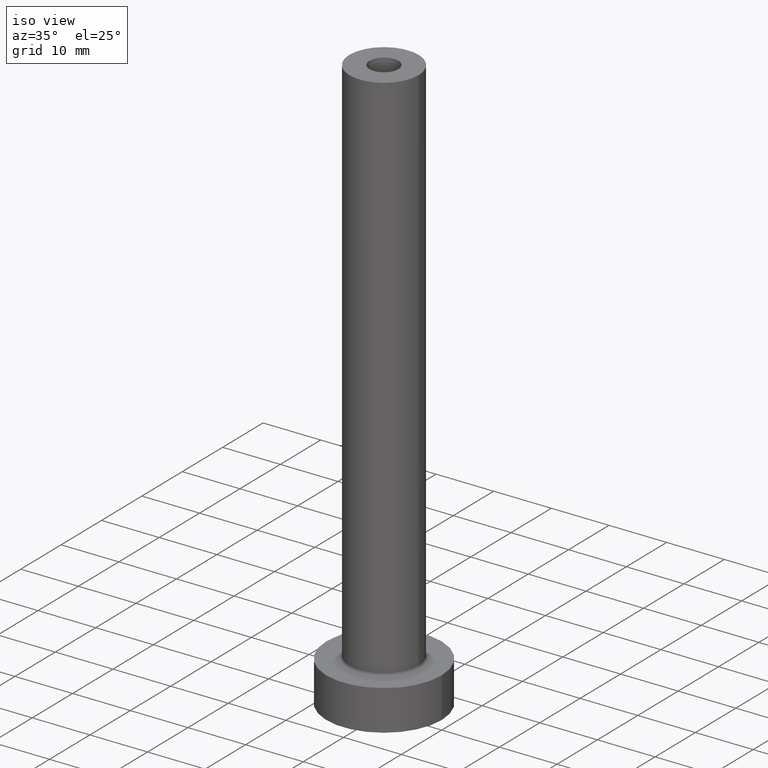
[diagram: clean part render]
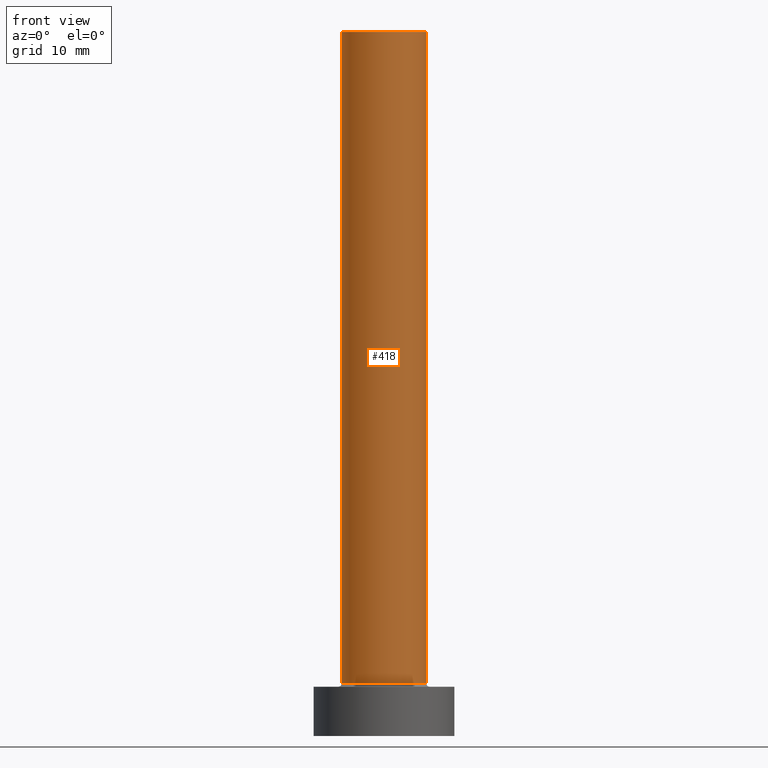
[diagram: tour spotlight — one face highlighted and labeled with its STEP entity id]
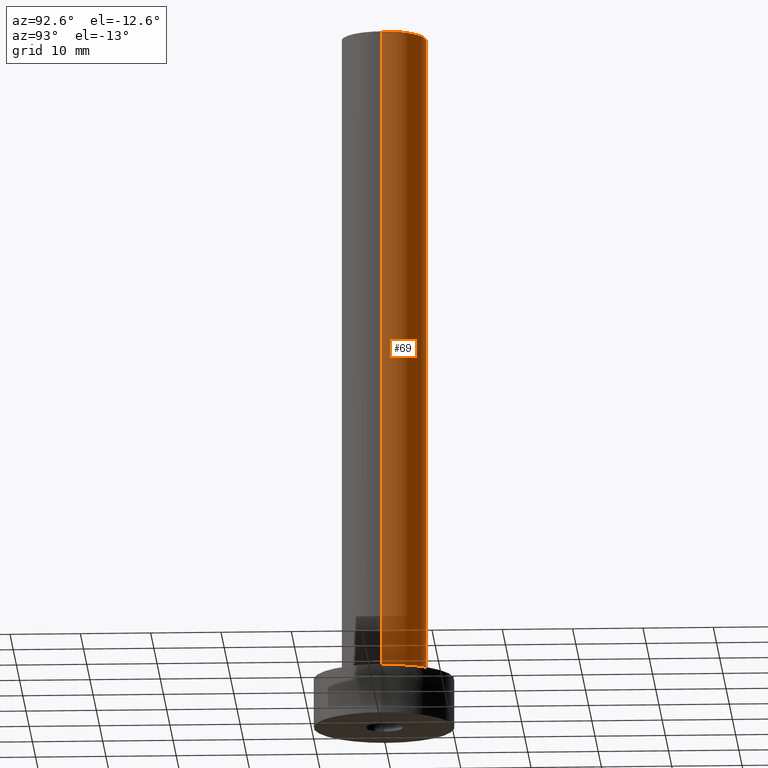
[diagram: tour spotlight — one face highlighted and labeled with its STEP entity id]
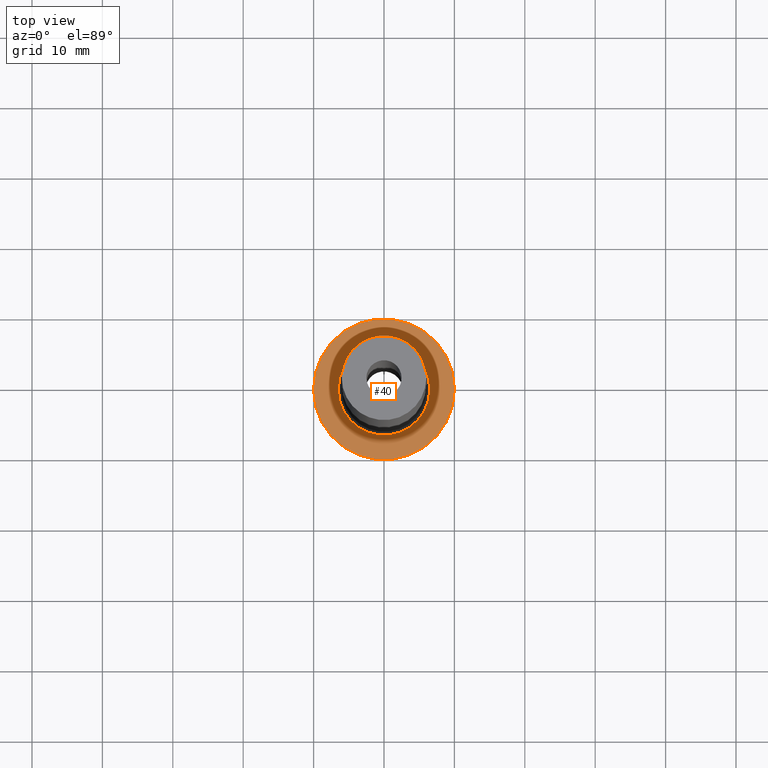
[diagram: tour spotlight — one face highlighted and labeled with its STEP entity id]
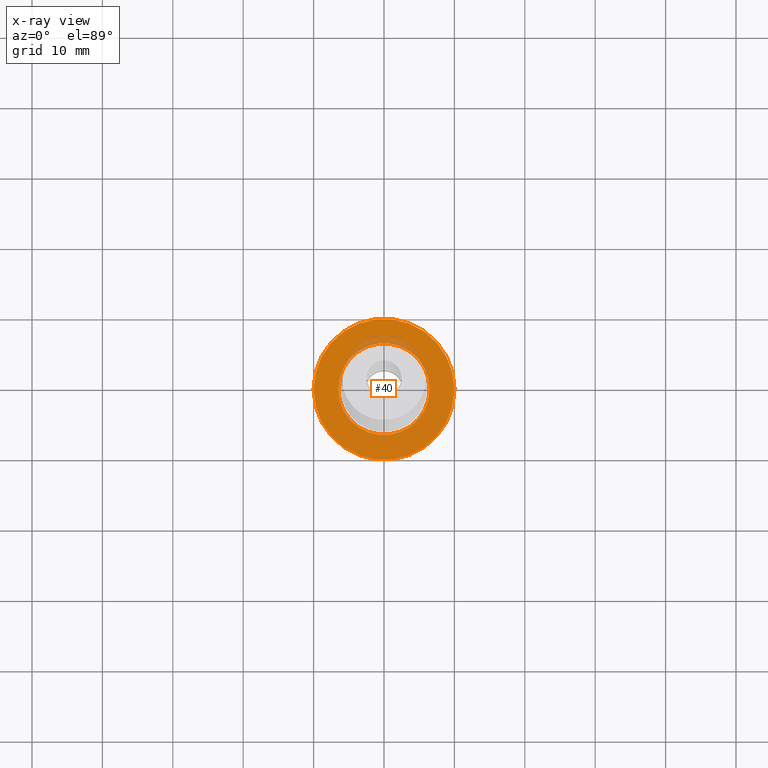
[diagram: x-ray of the same camera — body ghosted, this tour face saturated]
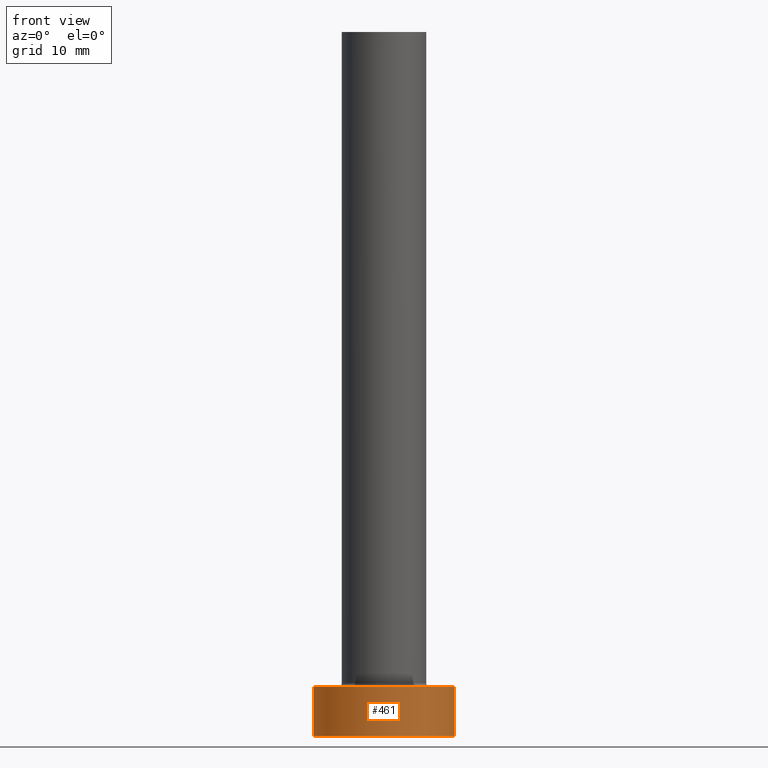
[diagram: tour spotlight — one face highlighted and labeled with its STEP entity id]
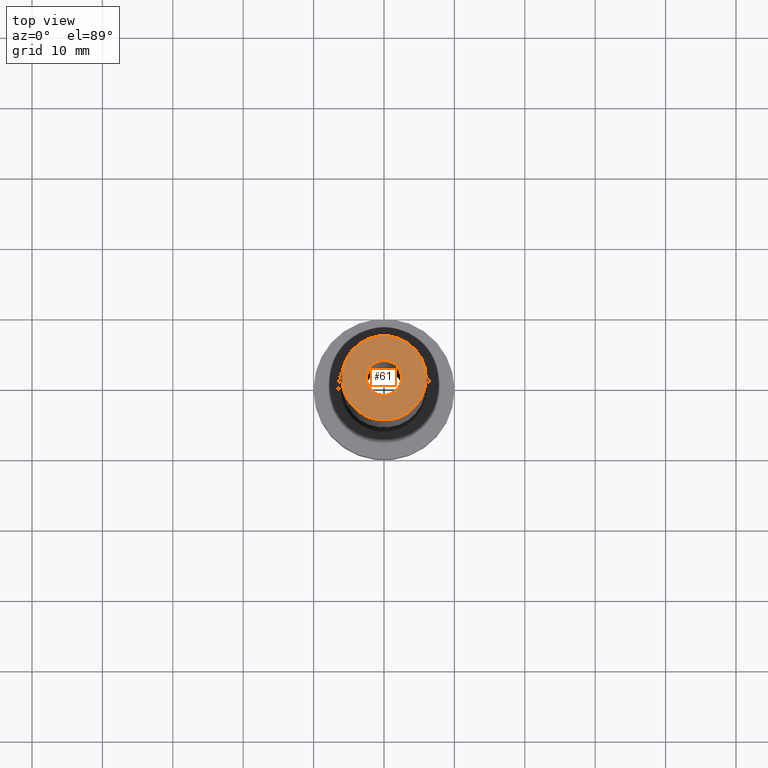
[diagram: tour spotlight — one face highlighted and labeled with its STEP entity id]
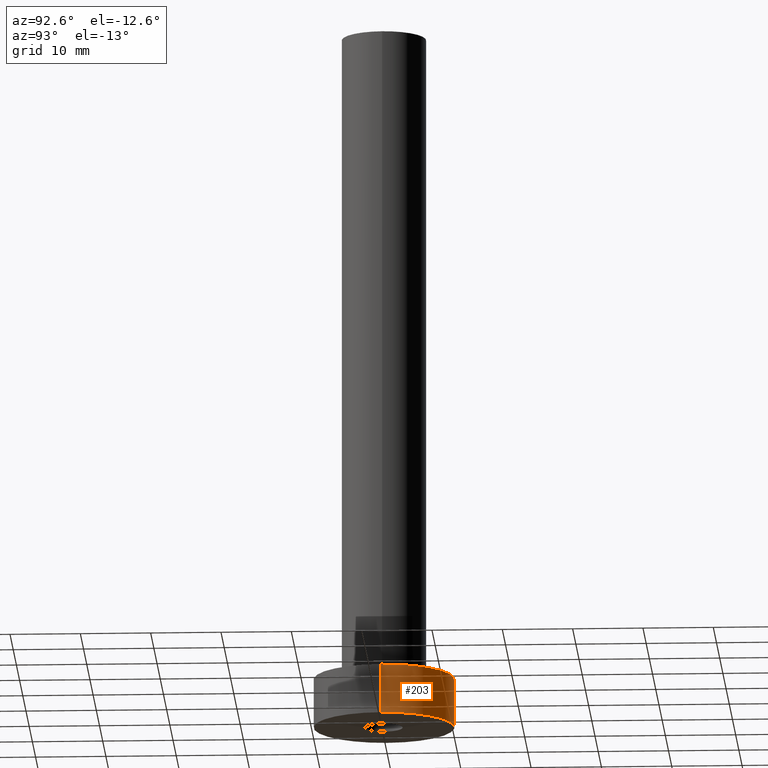
[diagram: tour spotlight — one face highlighted and labeled with its STEP entity id]
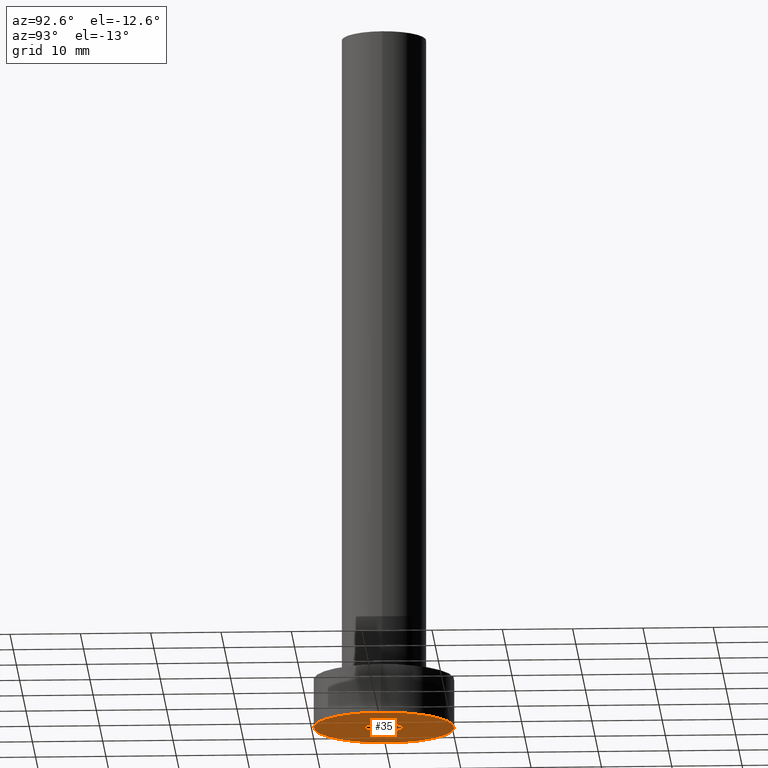
[diagram: tour spotlight — one face highlighted and labeled with its STEP entity id]
A machine part: a face-by-face anatomy tour. The part has 14 B-rep faces; the first image is the clean iso view, then the 7 largest visible faces are spotlighted one at a time (largest first), each with its STEP entity span.

Face 1 — front view, entity #418. In plain terms, the highlighted cylindrical surface (partial cylindrical patch) has radius 6 mm, axis along (-0, -0, -1).
Definition (entity closure, byte-faithful):
#4 = CARTESIAN_POINT ( 'NONE',  ( 0.000000000000000000, 0.000000000000000000, 100.0000000000000000 ) ) ;
#15 = ORIENTED_EDGE ( 'NONE', *, *, #187, .F. ) ;
#16 = EDGE_LOOP ( 'NONE', ( #15, #282, #206, #173 ) ) ;
#33 = AXIS2_PLACEMENT_3D ( 'NONE', #46, #428, #258 ) ;
#46 = CARTESIAN_POINT ( 'NONE',  ( 0.000000000000000000, 0.000000000000000000, 100.0000000000000000 ) ) ;
#53 = EDGE_CURVE ( 'NONE', #121, #387, #427, .T. ) ;
#68 = VERTEX_POINT ( 'NONE', #166 ) ;
#100 = DIRECTION ( 'NONE',  ( 1.000000000000000000, 0.000000000000000000, 0.000000000000000000 ) ) ;
#119 = CARTESIAN_POINT ( 'NONE',  ( -6.000000000000000888, 0.000000000000000000, 7.500000000000007105 ) ) ;
#121 = VERTEX_POINT ( 'NONE', #362 ) ;
#131 = DIRECTION ( 'NONE',  ( 0.000000000000000000, 0.000000000000000000, 1.000000000000000000 ) ) ;
#147 = CIRCLE ( 'NONE', #449, 6.000000000000000888 ) ;
#161 = AXIS2_PLACEMENT_3D ( 'NONE', #4, #131, #312 ) ;
#166 = CARTESIAN_POINT ( 'NONE',  ( 6.000000000000000888, 7.347880794884119736E-16, 7.500000000000007105 ) ) ;
#173 = ORIENTED_EDGE ( 'NONE', *, *, #328, .T. ) ;
#175 = FACE_OUTER_BOUND ( 'NONE', #16, .T. ) ;
#178 = CARTESIAN_POINT ( 'NONE',  ( 6.000000000000000888, 7.347880794884119736E-16, 100.0000000000000000 ) ) ;
#185 = CARTESIAN_POINT ( 'NONE',  ( -6.000000000000000888, 0.000000000000000000, 100.0000000000000000 ) ) ;
#187 = EDGE_CURVE ( 'NONE', #399, #68, #425, .T. ) ;
#206 = ORIENTED_EDGE ( 'NONE', *, *, #53, .T. ) ;
#224 = DIRECTION ( 'NONE',  ( -0.000000000000000000, -0.000000000000000000, -1.000000000000000000 ) ) ;
#245 = DIRECTION ( 'NONE',  ( -0.000000000000000000, -0.000000000000000000, -1.000000000000000000 ) ) ;
#247 = VECTOR ( 'NONE', #245, 1000.000000000000000 ) ;
#258 = DIRECTION ( 'NONE',  ( -1.000000000000000000, 0.000000000000000000, 0.000000000000000000 ) ) ;
#262 = CARTESIAN_POINT ( 'NONE',  ( 6.000000000000000888, 7.347880794884119736E-16, 100.0000000000000000 ) ) ;
#282 = ORIENTED_EDGE ( 'NONE', *, *, #345, .F. ) ;
#312 = DIRECTION ( 'NONE',  ( 1.000000000000000000, 0.000000000000000000, 0.000000000000000000 ) ) ;
#314 = VECTOR ( 'NONE', #224, 1000.000000000000000 ) ;
#328 = EDGE_CURVE ( 'NONE', #387, #68, #147, .T. ) ;
#340 = CIRCLE ( 'NONE', #161, 6.000000000000000888 ) ;
#345 = EDGE_CURVE ( 'NONE', #121, #399, #340, .T. ) ;
#362 = CARTESIAN_POINT ( 'NONE',  ( -6.000000000000000888, 0.000000000000000000, 100.0000000000000000 ) ) ;
#386 = DIRECTION ( 'NONE',  ( 0.000000000000000000, 0.000000000000000000, 1.000000000000000000 ) ) ;
#387 = VERTEX_POINT ( 'NONE', #119 ) ;
#388 = CARTESIAN_POINT ( 'NONE',  ( 0.000000000000000000, 0.000000000000000000, 7.500000000000007105 ) ) ;
#399 = VERTEX_POINT ( 'NONE', #178 ) ;
#418 = ADVANCED_FACE ( 'NONE', ( #175 ), #441, .T. ) ;
#425 = LINE ( 'NONE', #262, #314 ) ;
#427 = LINE ( 'NONE', #185, #247 ) ;
#428 = DIRECTION ( 'NONE',  ( -0.000000000000000000, -0.000000000000000000, -1.000000000000000000 ) ) ;
#441 = CYLINDRICAL_SURFACE ( 'NONE', #33, 6.000000000000000888 ) ;
#449 = AXIS2_PLACEMENT_3D ( 'NONE', #388, #386, #100 ) ;

Face 2 — auxiliary view, entity #69. In plain terms, the highlighted cylindrical surface (partial cylindrical patch) has radius 6 mm, axis along (-0, -0, -1).
Definition (entity closure, byte-faithful):
#6 = CARTESIAN_POINT ( 'NONE',  ( 0.000000000000000000, 0.000000000000000000, 100.0000000000000000 ) ) ;
#12 = DIRECTION ( 'NONE',  ( 0.000000000000000000, 0.000000000000000000, 1.000000000000000000 ) ) ;
#47 = AXIS2_PLACEMENT_3D ( 'NONE', #364, #371, #81 ) ;
#53 = EDGE_CURVE ( 'NONE', #121, #387, #427, .T. ) ;
#68 = VERTEX_POINT ( 'NONE', #166 ) ;
#69 = ADVANCED_FACE ( 'NONE', ( #390 ), #319, .T. ) ;
#74 = DIRECTION ( 'NONE',  ( -0.000000000000000000, -0.000000000000000000, -1.000000000000000000 ) ) ;
#81 = DIRECTION ( 'NONE',  ( 1.000000000000000000, 0.000000000000000000, 0.000000000000000000 ) ) ;
#90 = EDGE_CURVE ( 'NONE', #399, #121, #358, .T. ) ;
#110 = AXIS2_PLACEMENT_3D ( 'NONE', #398, #12, #181 ) ;
#113 = ORIENTED_EDGE ( 'NONE', *, *, #187, .T. ) ;
#119 = CARTESIAN_POINT ( 'NONE',  ( -6.000000000000000888, 0.000000000000000000, 7.500000000000007105 ) ) ;
#121 = VERTEX_POINT ( 'NONE', #362 ) ;
#166 = CARTESIAN_POINT ( 'NONE',  ( 6.000000000000000888, 7.347880794884119736E-16, 7.500000000000007105 ) ) ;
#178 = CARTESIAN_POINT ( 'NONE',  ( 6.000000000000000888, 7.347880794884119736E-16, 100.0000000000000000 ) ) ;
#181 = DIRECTION ( 'NONE',  ( 1.000000000000000000, 0.000000000000000000, 0.000000000000000000 ) ) ;
#185 = CARTESIAN_POINT ( 'NONE',  ( -6.000000000000000888, 0.000000000000000000, 100.0000000000000000 ) ) ;
#187 = EDGE_CURVE ( 'NONE', #399, #68, #425, .T. ) ;
#207 = DIRECTION ( 'NONE',  ( -1.000000000000000000, 0.000000000000000000, 0.000000000000000000 ) ) ;
#224 = DIRECTION ( 'NONE',  ( -0.000000000000000000, -0.000000000000000000, -1.000000000000000000 ) ) ;
#235 = CIRCLE ( 'NONE', #47, 6.000000000000000888 ) ;
#245 = DIRECTION ( 'NONE',  ( -0.000000000000000000, -0.000000000000000000, -1.000000000000000000 ) ) ;
#247 = VECTOR ( 'NONE', #245, 1000.000000000000000 ) ;
#257 = ORIENTED_EDGE ( 'NONE', *, *, #53, .F. ) ;
#262 = CARTESIAN_POINT ( 'NONE',  ( 6.000000000000000888, 7.347880794884119736E-16, 100.0000000000000000 ) ) ;
#291 = EDGE_LOOP ( 'NONE', ( #323, #113, #349, #257 ) ) ;
#304 = AXIS2_PLACEMENT_3D ( 'NONE', #6, #74, #207 ) ;
#314 = VECTOR ( 'NONE', #224, 1000.000000000000000 ) ;
#319 = CYLINDRICAL_SURFACE ( 'NONE', #304, 6.000000000000000888 ) ;
#323 = ORIENTED_EDGE ( 'NONE', *, *, #90, .F. ) ;
#349 = ORIENTED_EDGE ( 'NONE', *, *, #395, .T. ) ;
#358 = CIRCLE ( 'NONE', #110, 6.000000000000000888 ) ;
#362 = CARTESIAN_POINT ( 'NONE',  ( -6.000000000000000888, 0.000000000000000000, 100.0000000000000000 ) ) ;
#364 = CARTESIAN_POINT ( 'NONE',  ( 0.000000000000000000, 0.000000000000000000, 7.500000000000007105 ) ) ;
#371 = DIRECTION ( 'NONE',  ( 0.000000000000000000, 0.000000000000000000, 1.000000000000000000 ) ) ;
#387 = VERTEX_POINT ( 'NONE', #119 ) ;
#390 = FACE_OUTER_BOUND ( 'NONE', #291, .T. ) ;
#395 = EDGE_CURVE ( 'NONE', #68, #387, #235, .T. ) ;
#398 = CARTESIAN_POINT ( 'NONE',  ( 0.000000000000000000, 0.000000000000000000, 100.0000000000000000 ) ) ;
#399 = VERTEX_POINT ( 'NONE', #178 ) ;
#425 = LINE ( 'NONE', #262, #314 ) ;
#427 = LINE ( 'NONE', #185, #247 ) ;

Face 3 — top view, entity #40. An x-ray twin of the same camera follows (body ghosted, this face saturated) — the face is partly hidden behind the body. In plain terms, the highlighted planar face has unit normal (0, 0, 1).
Definition (entity closure, byte-faithful):
#20 = EDGE_LOOP ( 'NONE', ( #212, #117 ) ) ;
#30 = CARTESIAN_POINT ( 'NONE',  ( 0.000000000000000000, 0.000000000000000000, 7.000000000000000000 ) ) ;
#39 = ORIENTED_EDGE ( 'NONE', *, *, #139, .T. ) ;
#40 = ADVANCED_FACE ( 'NONE', ( #292, #290 ), #242, .T. ) ;
#51 = CARTESIAN_POINT ( 'NONE',  ( 10.00000000000000000, 1.224646799147353256E-15, 7.000000000000000000 ) ) ;
#80 = DIRECTION ( 'NONE',  ( 1.000000000000000000, 0.000000000000000000, -0.000000000000000000 ) ) ;
#86 = AXIS2_PLACEMENT_3D ( 'NONE', #30, #94, #234 ) ;
#94 = DIRECTION ( 'NONE',  ( -0.000000000000000000, -0.000000000000000000, -1.000000000000000000 ) ) ;
#99 = CIRCLE ( 'NONE', #200, 6.500000000000000888 ) ;
#112 = CARTESIAN_POINT ( 'NONE',  ( -6.500000000000000888, 7.960204194457796463E-16, 7.000000000000002665 ) ) ;
#117 = ORIENTED_EDGE ( 'NONE', *, *, #196, .T. ) ;
#120 = AXIS2_PLACEMENT_3D ( 'NONE', #265, #375, #144 ) ;
#126 = CIRCLE ( 'NONE', #120, 10.00000000000000000 ) ;
#132 = ORIENTED_EDGE ( 'NONE', *, *, #298, .T. ) ;
#137 = CARTESIAN_POINT ( 'NONE',  ( -10.00000000000000000, 0.000000000000000000, 7.000000000000000000 ) ) ;
#139 = EDGE_CURVE ( 'NONE', #442, #359, #201, .T. ) ;
#144 = DIRECTION ( 'NONE',  ( 1.000000000000000000, 0.000000000000000000, 0.000000000000000000 ) ) ;
#163 = AXIS2_PLACEMENT_3D ( 'NONE', #437, #321, #80 ) ;
#196 = EDGE_CURVE ( 'NONE', #433, #391, #126, .T. ) ;
#200 = AXIS2_PLACEMENT_3D ( 'NONE', #346, #237, #311 ) ;
#201 = CIRCLE ( 'NONE', #86, 6.500000000000000888 ) ;
#212 = ORIENTED_EDGE ( 'NONE', *, *, #382, .T. ) ;
#234 = DIRECTION ( 'NONE',  ( 1.000000000000000000, 0.000000000000000000, 0.000000000000000000 ) ) ;
#237 = DIRECTION ( 'NONE',  ( -0.000000000000000000, -0.000000000000000000, -1.000000000000000000 ) ) ;
#242 = PLANE ( 'NONE',  #163 ) ;
#265 = CARTESIAN_POINT ( 'NONE',  ( 0.000000000000000000, 0.000000000000000000, 7.000000000000000000 ) ) ;
#273 = CARTESIAN_POINT ( 'NONE',  ( 0.000000000000000000, 0.000000000000000000, 7.000000000000000000 ) ) ;
#281 = CARTESIAN_POINT ( 'NONE',  ( 6.500000000000000888, 0.000000000000000000, 7.000000000000002665 ) ) ;
#290 = FACE_OUTER_BOUND ( 'NONE', #20, .T. ) ;
#292 = FACE_BOUND ( 'NONE', #334, .T. ) ;
#298 = EDGE_CURVE ( 'NONE', #359, #442, #99, .T. ) ;
#311 = DIRECTION ( 'NONE',  ( 1.000000000000000000, 0.000000000000000000, 0.000000000000000000 ) ) ;
#321 = DIRECTION ( 'NONE',  ( 0.000000000000000000, 0.000000000000000000, 1.000000000000000000 ) ) ;
#326 = CIRCLE ( 'NONE', #422, 10.00000000000000000 ) ;
#334 = EDGE_LOOP ( 'NONE', ( #132, #39 ) ) ;
#346 = CARTESIAN_POINT ( 'NONE',  ( 0.000000000000000000, 0.000000000000000000, 7.000000000000000000 ) ) ;
#359 = VERTEX_POINT ( 'NONE', #281 ) ;
#375 = DIRECTION ( 'NONE',  ( 0.000000000000000000, 0.000000000000000000, 1.000000000000000000 ) ) ;
#382 = EDGE_CURVE ( 'NONE', #391, #433, #326, .T. ) ;
#391 = VERTEX_POINT ( 'NONE', #137 ) ;
#401 = DIRECTION ( 'NONE',  ( 1.000000000000000000, 0.000000000000000000, 0.000000000000000000 ) ) ;
#421 = DIRECTION ( 'NONE',  ( 0.000000000000000000, 0.000000000000000000, 1.000000000000000000 ) ) ;
#422 = AXIS2_PLACEMENT_3D ( 'NONE', #273, #421, #401 ) ;
#433 = VERTEX_POINT ( 'NONE', #51 ) ;
#437 = CARTESIAN_POINT ( 'NONE',  ( 0.000000000000000000, 0.000000000000000000, 7.000000000000000000 ) ) ;
#442 = VERTEX_POINT ( 'NONE', #112 ) ;

Face 4 — front view, entity #461. In plain terms, the highlighted cylindrical surface (partial cylindrical patch) has radius 10 mm, axis along (-0, -0, -1).
Definition (entity closure, byte-faithful):
#8 = CARTESIAN_POINT ( 'NONE',  ( 0.000000000000000000, 0.000000000000000000, 0.000000000000000000 ) ) ;
#14 = DIRECTION ( 'NONE',  ( -0.000000000000000000, -0.000000000000000000, -1.000000000000000000 ) ) ;
#48 = CARTESIAN_POINT ( 'NONE',  ( 10.00000000000000000, 1.224646799147353256E-15, 0.000000000000000000 ) ) ;
#51 = CARTESIAN_POINT ( 'NONE',  ( 10.00000000000000000, 1.224646799147353256E-15, 7.000000000000000000 ) ) ;
#78 = ORIENTED_EDGE ( 'NONE', *, *, #382, .F. ) ;
#88 = CYLINDRICAL_SURFACE ( 'NONE', #403, 10.00000000000000000 ) ;
#103 = ORIENTED_EDGE ( 'NONE', *, *, #455, .F. ) ;
#127 = EDGE_CURVE ( 'NONE', #391, #255, #327, .T. ) ;
#137 = CARTESIAN_POINT ( 'NONE',  ( -10.00000000000000000, 0.000000000000000000, 7.000000000000000000 ) ) ;
#156 = AXIS2_PLACEMENT_3D ( 'NONE', #8, #239, #241 ) ;
#194 = CIRCLE ( 'NONE', #156, 10.00000000000000000 ) ;
#209 = VERTEX_POINT ( 'NONE', #48 ) ;
#216 = LINE ( 'NONE', #331, #277 ) ;
#220 = CARTESIAN_POINT ( 'NONE',  ( 0.000000000000000000, 0.000000000000000000, 7.000000000000000000 ) ) ;
#239 = DIRECTION ( 'NONE',  ( 0.000000000000000000, 0.000000000000000000, 1.000000000000000000 ) ) ;
#241 = DIRECTION ( 'NONE',  ( 1.000000000000000000, 0.000000000000000000, 0.000000000000000000 ) ) ;
#243 = DIRECTION ( 'NONE',  ( -1.000000000000000000, 0.000000000000000000, 0.000000000000000000 ) ) ;
#248 = CARTESIAN_POINT ( 'NONE',  ( -10.00000000000000000, 0.000000000000000000, 7.000000000000000000 ) ) ;
#249 = ORIENTED_EDGE ( 'NONE', *, *, #127, .T. ) ;
#255 = VERTEX_POINT ( 'NONE', #413 ) ;
#273 = CARTESIAN_POINT ( 'NONE',  ( 0.000000000000000000, 0.000000000000000000, 7.000000000000000000 ) ) ;
#277 = VECTOR ( 'NONE', #293, 1000.000000000000000 ) ;
#280 = VECTOR ( 'NONE', #14, 1000.000000000000000 ) ;
#287 = DIRECTION ( 'NONE',  ( -0.000000000000000000, -0.000000000000000000, -1.000000000000000000 ) ) ;
#293 = DIRECTION ( 'NONE',  ( -0.000000000000000000, -0.000000000000000000, -1.000000000000000000 ) ) ;
#309 = EDGE_CURVE ( 'NONE', #255, #209, #194, .T. ) ;
#310 = ORIENTED_EDGE ( 'NONE', *, *, #309, .T. ) ;
#320 = EDGE_LOOP ( 'NONE', ( #103, #78, #249, #310 ) ) ;
#326 = CIRCLE ( 'NONE', #422, 10.00000000000000000 ) ;
#327 = LINE ( 'NONE', #248, #280 ) ;
#331 = CARTESIAN_POINT ( 'NONE',  ( 10.00000000000000000, 1.224646799147353256E-15, 7.000000000000000000 ) ) ;
#382 = EDGE_CURVE ( 'NONE', #391, #433, #326, .T. ) ;
#391 = VERTEX_POINT ( 'NONE', #137 ) ;
#401 = DIRECTION ( 'NONE',  ( 1.000000000000000000, 0.000000000000000000, 0.000000000000000000 ) ) ;
#403 = AXIS2_PLACEMENT_3D ( 'NONE', #220, #287, #243 ) ;
#405 = FACE_OUTER_BOUND ( 'NONE', #320, .T. ) ;
#413 = CARTESIAN_POINT ( 'NONE',  ( -10.00000000000000000, 0.000000000000000000, 0.000000000000000000 ) ) ;
#421 = DIRECTION ( 'NONE',  ( 0.000000000000000000, 0.000000000000000000, 1.000000000000000000 ) ) ;
#422 = AXIS2_PLACEMENT_3D ( 'NONE', #273, #421, #401 ) ;
#433 = VERTEX_POINT ( 'NONE', #51 ) ;
#455 = EDGE_CURVE ( 'NONE', #433, #209, #216, .T. ) ;
#461 = ADVANCED_FACE ( 'NONE', ( #405 ), #88, .T. ) ;

Face 5 — top view, entity #61. In plain terms, the highlighted planar face has unit normal (0, 0, 1).
Definition (entity closure, byte-faithful):
#4 = CARTESIAN_POINT ( 'NONE',  ( 0.000000000000000000, 0.000000000000000000, 100.0000000000000000 ) ) ;
#10 = CARTESIAN_POINT ( 'NONE',  ( 2.500000000000000000, 3.061616997868382648E-16, 100.0000000000000000 ) ) ;
#12 = DIRECTION ( 'NONE',  ( 0.000000000000000000, 0.000000000000000000, 1.000000000000000000 ) ) ;
#38 = FACE_BOUND ( 'NONE', #316, .T. ) ;
#61 = ADVANCED_FACE ( 'NONE', ( #38, #172 ), #435, .T. ) ;
#67 = CIRCLE ( 'NONE', #329, 2.500000000000000000 ) ;
#70 = ORIENTED_EDGE ( 'NONE', *, *, #345, .T. ) ;
#77 = DIRECTION ( 'NONE',  ( 1.000000000000000000, 0.000000000000000000, -0.000000000000000000 ) ) ;
#79 = ORIENTED_EDGE ( 'NONE', *, *, #160, .F. ) ;
#90 = EDGE_CURVE ( 'NONE', #399, #121, #358, .T. ) ;
#105 = ORIENTED_EDGE ( 'NONE', *, *, #90, .T. ) ;
#108 = DIRECTION ( 'NONE',  ( 1.000000000000000000, 0.000000000000000000, 0.000000000000000000 ) ) ;
#110 = AXIS2_PLACEMENT_3D ( 'NONE', #398, #12, #181 ) ;
#118 = ORIENTED_EDGE ( 'NONE', *, *, #157, .F. ) ;
#121 = VERTEX_POINT ( 'NONE', #362 ) ;
#131 = DIRECTION ( 'NONE',  ( 0.000000000000000000, 0.000000000000000000, 1.000000000000000000 ) ) ;
#157 = EDGE_CURVE ( 'NONE', #426, #174, #67, .T. ) ;
#160 = EDGE_CURVE ( 'NONE', #174, #426, #379, .T. ) ;
#161 = AXIS2_PLACEMENT_3D ( 'NONE', #4, #131, #312 ) ;
#165 = DIRECTION ( 'NONE',  ( 1.000000000000000000, 0.000000000000000000, 0.000000000000000000 ) ) ;
#172 = FACE_OUTER_BOUND ( 'NONE', #333, .T. ) ;
#174 = VERTEX_POINT ( 'NONE', #393 ) ;
#178 = CARTESIAN_POINT ( 'NONE',  ( 6.000000000000000888, 7.347880794884119736E-16, 100.0000000000000000 ) ) ;
#181 = DIRECTION ( 'NONE',  ( 1.000000000000000000, 0.000000000000000000, 0.000000000000000000 ) ) ;
#183 = AXIS2_PLACEMENT_3D ( 'NONE', #350, #246, #165 ) ;
#197 = CARTESIAN_POINT ( 'NONE',  ( 0.000000000000000000, 0.000000000000000000, 100.0000000000000000 ) ) ;
#204 = CARTESIAN_POINT ( 'NONE',  ( 0.000000000000000000, 0.000000000000000000, 100.0000000000000000 ) ) ;
#246 = DIRECTION ( 'NONE',  ( 0.000000000000000000, 0.000000000000000000, 1.000000000000000000 ) ) ;
#297 = AXIS2_PLACEMENT_3D ( 'NONE', #204, #351, #77 ) ;
#312 = DIRECTION ( 'NONE',  ( 1.000000000000000000, 0.000000000000000000, 0.000000000000000000 ) ) ;
#316 = EDGE_LOOP ( 'NONE', ( #79, #118 ) ) ;
#329 = AXIS2_PLACEMENT_3D ( 'NONE', #197, #343, #108 ) ;
#333 = EDGE_LOOP ( 'NONE', ( #70, #105 ) ) ;
#340 = CIRCLE ( 'NONE', #161, 6.000000000000000888 ) ;
#343 = DIRECTION ( 'NONE',  ( 0.000000000000000000, 0.000000000000000000, 1.000000000000000000 ) ) ;
#345 = EDGE_CURVE ( 'NONE', #121, #399, #340, .T. ) ;
#350 = CARTESIAN_POINT ( 'NONE',  ( 0.000000000000000000, 0.000000000000000000, 100.0000000000000000 ) ) ;
#351 = DIRECTION ( 'NONE',  ( 0.000000000000000000, 0.000000000000000000, 1.000000000000000000 ) ) ;
#358 = CIRCLE ( 'NONE', #110, 6.000000000000000888 ) ;
#362 = CARTESIAN_POINT ( 'NONE',  ( -6.000000000000000888, 0.000000000000000000, 100.0000000000000000 ) ) ;
#379 = CIRCLE ( 'NONE', #183, 2.500000000000000000 ) ;
#393 = CARTESIAN_POINT ( 'NONE',  ( -2.500000000000000000, 0.000000000000000000, 100.0000000000000000 ) ) ;
#398 = CARTESIAN_POINT ( 'NONE',  ( 0.000000000000000000, 0.000000000000000000, 100.0000000000000000 ) ) ;
#399 = VERTEX_POINT ( 'NONE', #178 ) ;
#426 = VERTEX_POINT ( 'NONE', #10 ) ;
#435 = PLANE ( 'NONE',  #297 ) ;

Face 6 — auxiliary view, entity #203. In plain terms, the highlighted cylindrical surface (partial cylindrical patch) has radius 10 mm, axis along (-0, -0, -1).
Definition (entity closure, byte-faithful):
#14 = DIRECTION ( 'NONE',  ( -0.000000000000000000, -0.000000000000000000, -1.000000000000000000 ) ) ;
#24 = CARTESIAN_POINT ( 'NONE',  ( 0.000000000000000000, 0.000000000000000000, 7.000000000000000000 ) ) ;
#28 = DIRECTION ( 'NONE',  ( 0.000000000000000000, 0.000000000000000000, 1.000000000000000000 ) ) ;
#48 = CARTESIAN_POINT ( 'NONE',  ( 10.00000000000000000, 1.224646799147353256E-15, 0.000000000000000000 ) ) ;
#51 = CARTESIAN_POINT ( 'NONE',  ( 10.00000000000000000, 1.224646799147353256E-15, 7.000000000000000000 ) ) ;
#58 = FACE_OUTER_BOUND ( 'NONE', #218, .T. ) ;
#107 = ORIENTED_EDGE ( 'NONE', *, *, #455, .T. ) ;
#120 = AXIS2_PLACEMENT_3D ( 'NONE', #265, #375, #144 ) ;
#126 = CIRCLE ( 'NONE', #120, 10.00000000000000000 ) ;
#127 = EDGE_CURVE ( 'NONE', #391, #255, #327, .T. ) ;
#137 = CARTESIAN_POINT ( 'NONE',  ( -10.00000000000000000, 0.000000000000000000, 7.000000000000000000 ) ) ;
#144 = DIRECTION ( 'NONE',  ( 1.000000000000000000, 0.000000000000000000, 0.000000000000000000 ) ) ;
#153 = DIRECTION ( 'NONE',  ( -0.000000000000000000, -0.000000000000000000, -1.000000000000000000 ) ) ;
#191 = CYLINDRICAL_SURFACE ( 'NONE', #230, 10.00000000000000000 ) ;
#196 = EDGE_CURVE ( 'NONE', #433, #391, #126, .T. ) ;
#203 = ADVANCED_FACE ( 'NONE', ( #58 ), #191, .T. ) ;
#205 = ORIENTED_EDGE ( 'NONE', *, *, #127, .F. ) ;
#209 = VERTEX_POINT ( 'NONE', #48 ) ;
#216 = LINE ( 'NONE', #331, #277 ) ;
#218 = EDGE_LOOP ( 'NONE', ( #368, #107, #436, #205 ) ) ;
#230 = AXIS2_PLACEMENT_3D ( 'NONE', #24, #153, #300 ) ;
#248 = CARTESIAN_POINT ( 'NONE',  ( -10.00000000000000000, 0.000000000000000000, 7.000000000000000000 ) ) ;
#255 = VERTEX_POINT ( 'NONE', #413 ) ;
#256 = CIRCLE ( 'NONE', #383, 10.00000000000000000 ) ;
#265 = CARTESIAN_POINT ( 'NONE',  ( 0.000000000000000000, 0.000000000000000000, 7.000000000000000000 ) ) ;
#266 = EDGE_CURVE ( 'NONE', #209, #255, #256, .T. ) ;
#277 = VECTOR ( 'NONE', #293, 1000.000000000000000 ) ;
#280 = VECTOR ( 'NONE', #14, 1000.000000000000000 ) ;
#293 = DIRECTION ( 'NONE',  ( -0.000000000000000000, -0.000000000000000000, -1.000000000000000000 ) ) ;
#300 = DIRECTION ( 'NONE',  ( -1.000000000000000000, 0.000000000000000000, 0.000000000000000000 ) ) ;
#327 = LINE ( 'NONE', #248, #280 ) ;
#331 = CARTESIAN_POINT ( 'NONE',  ( 10.00000000000000000, 1.224646799147353256E-15, 7.000000000000000000 ) ) ;
#341 = CARTESIAN_POINT ( 'NONE',  ( 0.000000000000000000, 0.000000000000000000, 0.000000000000000000 ) ) ;
#368 = ORIENTED_EDGE ( 'NONE', *, *, #196, .F. ) ;
#375 = DIRECTION ( 'NONE',  ( 0.000000000000000000, 0.000000000000000000, 1.000000000000000000 ) ) ;
#378 = DIRECTION ( 'NONE',  ( 1.000000000000000000, 0.000000000000000000, 0.000000000000000000 ) ) ;
#383 = AXIS2_PLACEMENT_3D ( 'NONE', #341, #28, #378 ) ;
#391 = VERTEX_POINT ( 'NONE', #137 ) ;
#413 = CARTESIAN_POINT ( 'NONE',  ( -10.00000000000000000, 0.000000000000000000, 0.000000000000000000 ) ) ;
#433 = VERTEX_POINT ( 'NONE', #51 ) ;
#436 = ORIENTED_EDGE ( 'NONE', *, *, #266, .T. ) ;
#455 = EDGE_CURVE ( 'NONE', #433, #209, #216, .T. ) ;

Face 7 — auxiliary view, entity #35. In plain terms, the highlighted planar face has unit normal (0, 0, 1).
Definition (entity closure, byte-faithful):
#8 = CARTESIAN_POINT ( 'NONE',  ( 0.000000000000000000, 0.000000000000000000, 0.000000000000000000 ) ) ;
#18 = CARTESIAN_POINT ( 'NONE',  ( 0.000000000000000000, 0.000000000000000000, 0.000000000000000000 ) ) ;
#28 = DIRECTION ( 'NONE',  ( 0.000000000000000000, 0.000000000000000000, 1.000000000000000000 ) ) ;
#35 = ADVANCED_FACE ( 'NONE', ( #104, #363 ), #45, .F. ) ;
#36 = EDGE_LOOP ( 'NONE', ( #111, #253 ) ) ;
#45 = PLANE ( 'NONE',  #432 ) ;
#48 = CARTESIAN_POINT ( 'NONE',  ( 10.00000000000000000, 1.224646799147353256E-15, 0.000000000000000000 ) ) ;
#54 = VERTEX_POINT ( 'NONE', #440 ) ;
#101 = CARTESIAN_POINT ( 'NONE',  ( -2.649999999999999911, 0.000000000000000000, 0.000000000000000000 ) ) ;
#104 = FACE_BOUND ( 'NONE', #294, .T. ) ;
#111 = ORIENTED_EDGE ( 'NONE', *, *, #309, .F. ) ;
#128 = CARTESIAN_POINT ( 'NONE',  ( 0.000000000000000000, 0.000000000000000000, 0.000000000000000000 ) ) ;
#129 = EDGE_CURVE ( 'NONE', #286, #54, #318, .T. ) ;
#135 = AXIS2_PLACEMENT_3D ( 'NONE', #128, #419, #308 ) ;
#136 = ORIENTED_EDGE ( 'NONE', *, *, #129, .F. ) ;
#140 = DIRECTION ( 'NONE',  ( 0.000000000000000000, 0.000000000000000000, 1.000000000000000000 ) ) ;
#156 = AXIS2_PLACEMENT_3D ( 'NONE', #8, #239, #241 ) ;
#188 = ORIENTED_EDGE ( 'NONE', *, *, #373, .F. ) ;
#192 = DIRECTION ( 'NONE',  ( -0.000000000000000000, -0.000000000000000000, -1.000000000000000000 ) ) ;
#194 = CIRCLE ( 'NONE', #156, 10.00000000000000000 ) ;
#209 = VERTEX_POINT ( 'NONE', #48 ) ;
#239 = DIRECTION ( 'NONE',  ( 0.000000000000000000, 0.000000000000000000, 1.000000000000000000 ) ) ;
#241 = DIRECTION ( 'NONE',  ( 1.000000000000000000, 0.000000000000000000, 0.000000000000000000 ) ) ;
#253 = ORIENTED_EDGE ( 'NONE', *, *, #266, .F. ) ;
#255 = VERTEX_POINT ( 'NONE', #413 ) ;
#256 = CIRCLE ( 'NONE', #383, 10.00000000000000000 ) ;
#266 = EDGE_CURVE ( 'NONE', #209, #255, #256, .T. ) ;
#278 = CARTESIAN_POINT ( 'NONE',  ( 0.000000000000000000, 0.000000000000000000, 0.000000000000000000 ) ) ;
#286 = VERTEX_POINT ( 'NONE', #101 ) ;
#294 = EDGE_LOOP ( 'NONE', ( #136, #188 ) ) ;
#308 = DIRECTION ( 'NONE',  ( 1.000000000000000000, 0.000000000000000000, 0.000000000000000000 ) ) ;
#309 = EDGE_CURVE ( 'NONE', #255, #209, #194, .T. ) ;
#318 = CIRCLE ( 'NONE', #412, 2.649999999999999911 ) ;
#339 = DIRECTION ( 'NONE',  ( 1.000000000000000000, 0.000000000000000000, 0.000000000000000000 ) ) ;
#341 = CARTESIAN_POINT ( 'NONE',  ( 0.000000000000000000, 0.000000000000000000, 0.000000000000000000 ) ) ;
#344 = CIRCLE ( 'NONE', #135, 2.649999999999999911 ) ;
#356 = DIRECTION ( 'NONE',  ( 1.000000000000000000, 0.000000000000000000, -0.000000000000000000 ) ) ;
#363 = FACE_OUTER_BOUND ( 'NONE', #36, .T. ) ;
#373 = EDGE_CURVE ( 'NONE', #54, #286, #344, .T. ) ;
#378 = DIRECTION ( 'NONE',  ( 1.000000000000000000, 0.000000000000000000, 0.000000000000000000 ) ) ;
#383 = AXIS2_PLACEMENT_3D ( 'NONE', #341, #28, #378 ) ;
#412 = AXIS2_PLACEMENT_3D ( 'NONE', #278, #192, #339 ) ;
#413 = CARTESIAN_POINT ( 'NONE',  ( -10.00000000000000000, 0.000000000000000000, 0.000000000000000000 ) ) ;
#419 = DIRECTION ( 'NONE',  ( -0.000000000000000000, -0.000000000000000000, -1.000000000000000000 ) ) ;
#432 = AXIS2_PLACEMENT_3D ( 'NONE', #18, #140, #356 ) ;
#440 = CARTESIAN_POINT ( 'NONE',  ( 2.649999999999999911, 3.245314017740485962E-16, 0.000000000000000000 ) ) ;